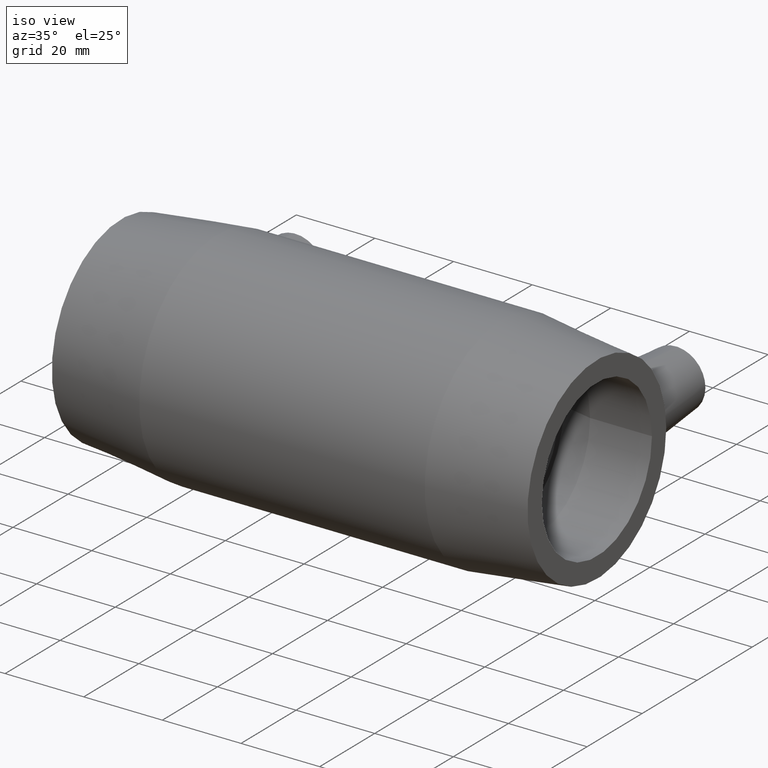
[diagram: clean part render]
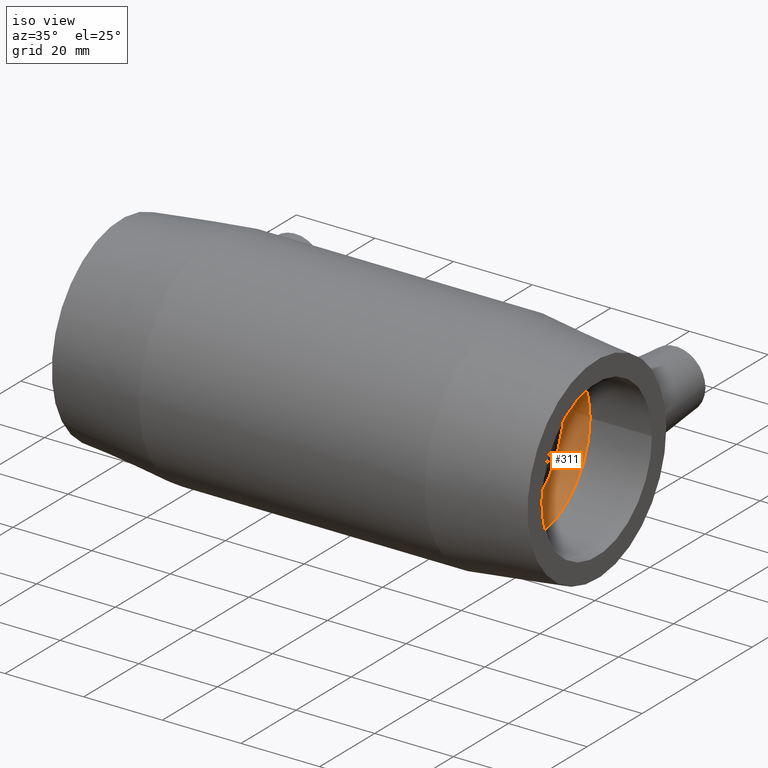
[diagram: same view with one face highlighted and labeled with its STEP entity id]
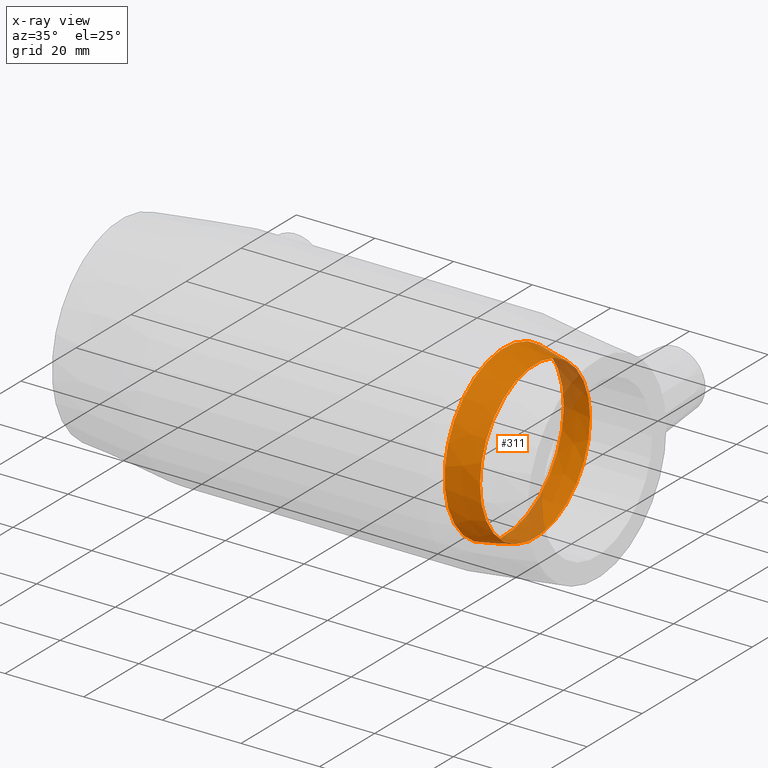
[diagram: x-ray of the same camera — body ghosted, the highlighted face saturated]
A machine part, iso view. The second image highlights one B-rep face of the part: STEP entity #311.
The next image is the same camera in x-ray: the body ghosted, the highlighted face saturated — about 16% of this face is hidden behind the body in this view.
In plain terms, the highlighted conical surface has half-angle 12 deg.
Its self-contained STEP definition (entity closure, byte-faithful):
#20=CONICAL_SURFACE('',#356,20.8360558092354,12.);
#38=FACE_BOUND('',#121,.T.);
#77=FACE_OUTER_BOUND('',#120,.T.);
#120=EDGE_LOOP('',(#258));
#121=EDGE_LOOP('',(#259));
#159=CIRCLE('',#355,20.);
#160=CIRCLE('',#357,21.6721116184708);
#187=VERTEX_POINT('',#604);
#188=VERTEX_POINT('',#607);
#215=EDGE_CURVE('',#187,#187,#159,.T.);
#216=EDGE_CURVE('',#188,#188,#160,.T.);
#258=ORIENTED_EDGE('',*,*,#216,.F.);
#259=ORIENTED_EDGE('',*,*,#215,.T.);
#311=ADVANCED_FACE('',(#77,#38),#20,.F.);
#355=AXIS2_PLACEMENT_3D('',#605,#441,#442);
#356=AXIS2_PLACEMENT_3D('',#606,#443,#444);
#357=AXIS2_PLACEMENT_3D('',#608,#445,#446);
#441=DIRECTION('center_axis',(1.,0.,0.));
#442=DIRECTION('ref_axis',(0.,0.,-1.));
#443=DIRECTION('center_axis',(-1.,0.,0.));
#444=DIRECTION('ref_axis',(0.,1.,0.));
#445=DIRECTION('center_axis',(1.,0.,0.));
#446=DIRECTION('ref_axis',(0.,0.,-1.));
#604=CARTESIAN_POINT('',(44.7666666666667,20.,0.));
#605=CARTESIAN_POINT('Origin',(44.7666666666667,0.,0.));
#606=CARTESIAN_POINT('Origin',(40.8333333333333,0.,0.));
#607=CARTESIAN_POINT('',(36.9,21.6721116184708,0.));
#608=CARTESIAN_POINT('Origin',(36.9,0.,0.));